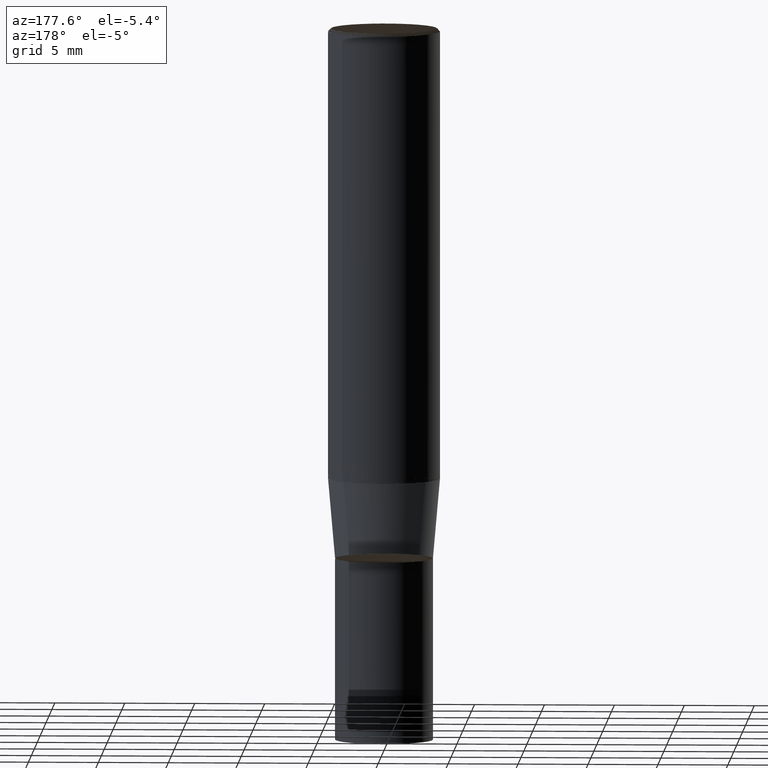
[diagram: clean part render]
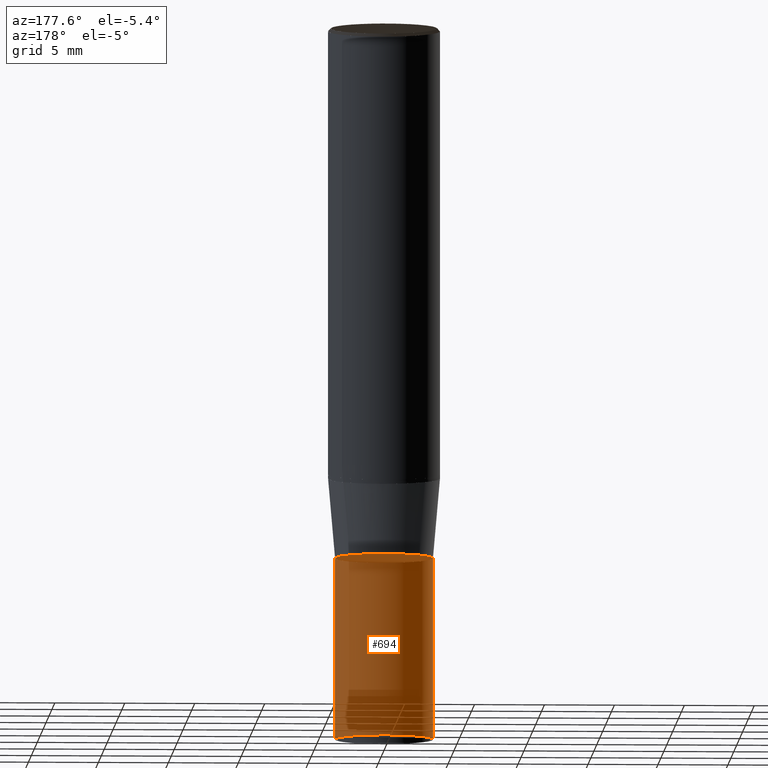
[diagram: same view with one face highlighted and labeled with its STEP entity id]
A machine part, auxiliary view. The second image highlights one B-rep face of the part: STEP entity #694.
In plain terms, the highlighted face is a freeform B-spline surface patch.
Its self-contained STEP definition (entity closure, byte-faithful):
#604=CARTESIAN_POINT('',(3.5,0.0,-19.0));
#605=CARTESIAN_POINT('',(3.5,3.5,-19.0));
#606=CARTESIAN_POINT('',(0.0,3.5,-19.0));
#607=CARTESIAN_POINT('',(-3.5,3.5,-19.0));
#608=CARTESIAN_POINT('',(-3.5,0.0,-19.0));
#609=CARTESIAN_POINT('',(3.5,0.0,-6.0));
#610=CARTESIAN_POINT('',(3.5,3.5,-6.0));
#611=CARTESIAN_POINT('',(0.0,3.5,-6.0));
#612=CARTESIAN_POINT('',(-3.5,3.5,-6.0));
#613=CARTESIAN_POINT('',(-3.5,0.0,-6.0));
#675=(
BOUNDED_SURFACE()
B_SPLINE_SURFACE(1,2,(
(#604,#605,#606,#607,#608),
(#609,#610,#611,#612,#613)
), .UNSPECIFIED.,.F.,.F.,.F.)
B_SPLINE_SURFACE_WITH_KNOTS((2,2),(3,2,3),(
0.0,1.0),(
0.0,0.5,1.0), .UNSPECIFIED.)
GEOMETRIC_REPRESENTATION_ITEM()
RATIONAL_B_SPLINE_SURFACE(((1.0,0.707106781187,1.0,0.707106781187,1.0),
(1.0,0.707106781187,1.0,0.707106781187,1.0)
))
REPRESENTATION_ITEM('')
SURFACE()
);
#676=(
BOUNDED_CURVE()
B_SPLINE_CURVE(2,(#608,#607,#606,#605,#604),.UNSPECIFIED.,.F.,.F.)
B_SPLINE_CURVE_WITH_KNOTS((3,2,3),
(0.0,0.5,1.0),.UNSPECIFIED.)
CURVE()
GEOMETRIC_REPRESENTATION_ITEM()
RATIONAL_B_SPLINE_CURVE((1.0,0.707106781187,1.0,0.707106781187,1.0))
REPRESENTATION_ITEM('')
);
#677=(
BOUNDED_CURVE()
B_SPLINE_CURVE(1,(#604,#609),.UNSPECIFIED.,.F.,.F.)
B_SPLINE_CURVE_WITH_KNOTS((2,2),
(0.0,1.0),.UNSPECIFIED.)
CURVE()
GEOMETRIC_REPRESENTATION_ITEM()
RATIONAL_B_SPLINE_CURVE((1.0,1.0))
REPRESENTATION_ITEM('')
);
#678=(
BOUNDED_CURVE()
B_SPLINE_CURVE(2,(#609,#610,#611,#612,#613),.UNSPECIFIED.,.F.,.F.)
B_SPLINE_CURVE_WITH_KNOTS((3,2,3),
(0.0,0.5,1.0),.UNSPECIFIED.)
CURVE()
GEOMETRIC_REPRESENTATION_ITEM()
RATIONAL_B_SPLINE_CURVE((1.0,0.707106781187,1.0,0.707106781187,1.0))
REPRESENTATION_ITEM('')
);
#679=(
BOUNDED_CURVE()
B_SPLINE_CURVE(1,(#613,#608),.UNSPECIFIED.,.F.,.F.)
B_SPLINE_CURVE_WITH_KNOTS((2,2),
(0.0,1.0),.UNSPECIFIED.)
CURVE()
GEOMETRIC_REPRESENTATION_ITEM()
RATIONAL_B_SPLINE_CURVE((1.0,1.0))
REPRESENTATION_ITEM('')
);
#680=VERTEX_POINT('',#604);
#681=VERTEX_POINT('',#608);
#682=VERTEX_POINT('',#609);
#683=VERTEX_POINT('',#613);
#684=EDGE_CURVE('',#681,#680,#676,.T.);
#685=EDGE_CURVE('',#680,#682,#677,.T.);
#686=EDGE_CURVE('',#682,#683,#678,.T.);
#687=EDGE_CURVE('',#683,#681,#679,.T.);
#688=ORIENTED_EDGE('',*,*,#684,.T.);
#689=ORIENTED_EDGE('',*,*,#685,.T.);
#690=ORIENTED_EDGE('',*,*,#686,.T.);
#691=ORIENTED_EDGE('',*,*,#687,.T.);
#692=EDGE_LOOP('',(#688,#689,#690,#691));
#693=FACE_OUTER_BOUND('',#692,.T.);
#694=ADVANCED_FACE('',(#693),#675,.T.);